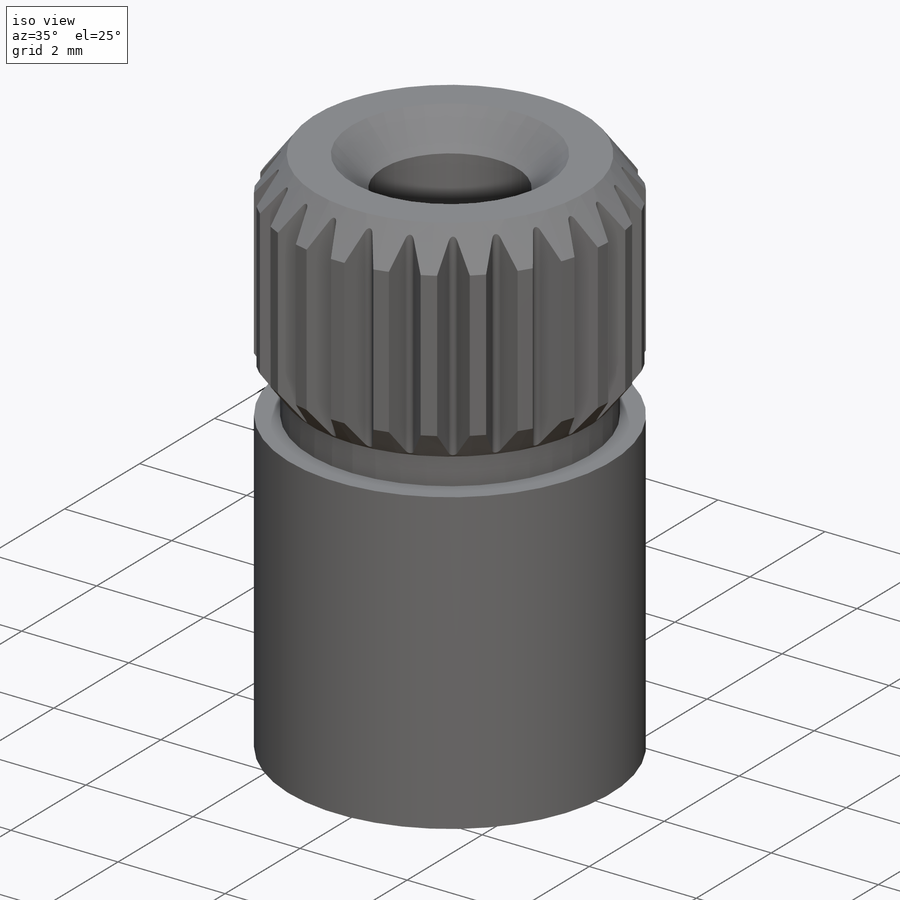
[diagram: iso view]
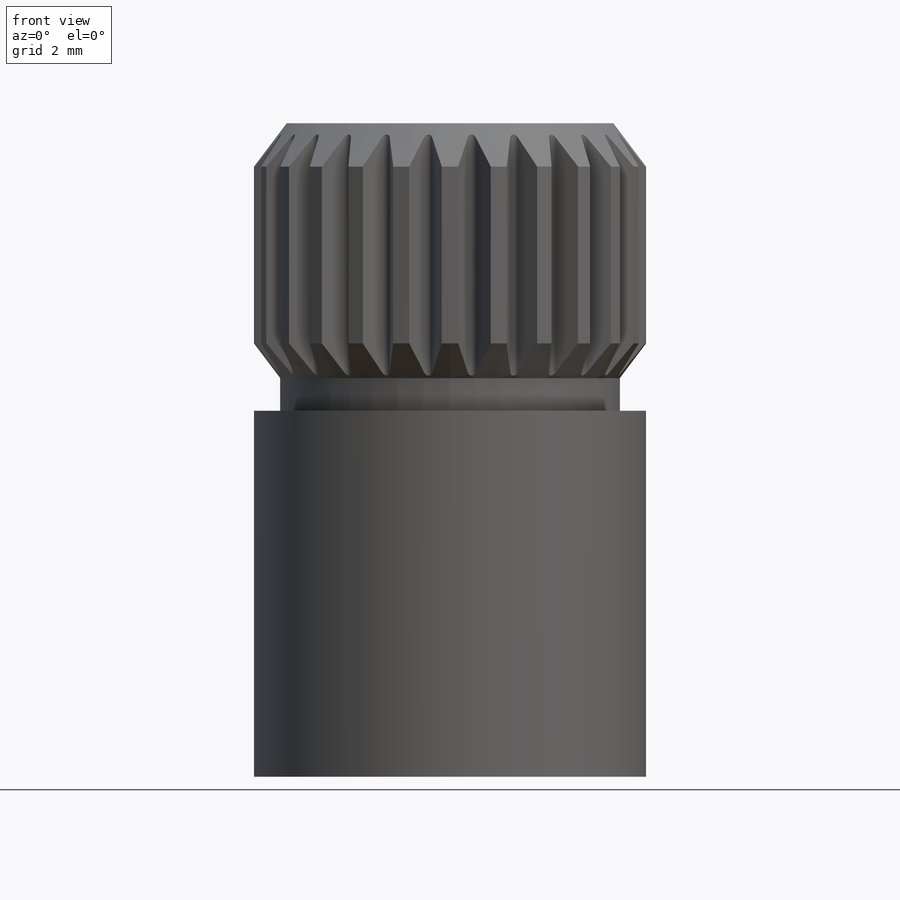
[diagram: front view]
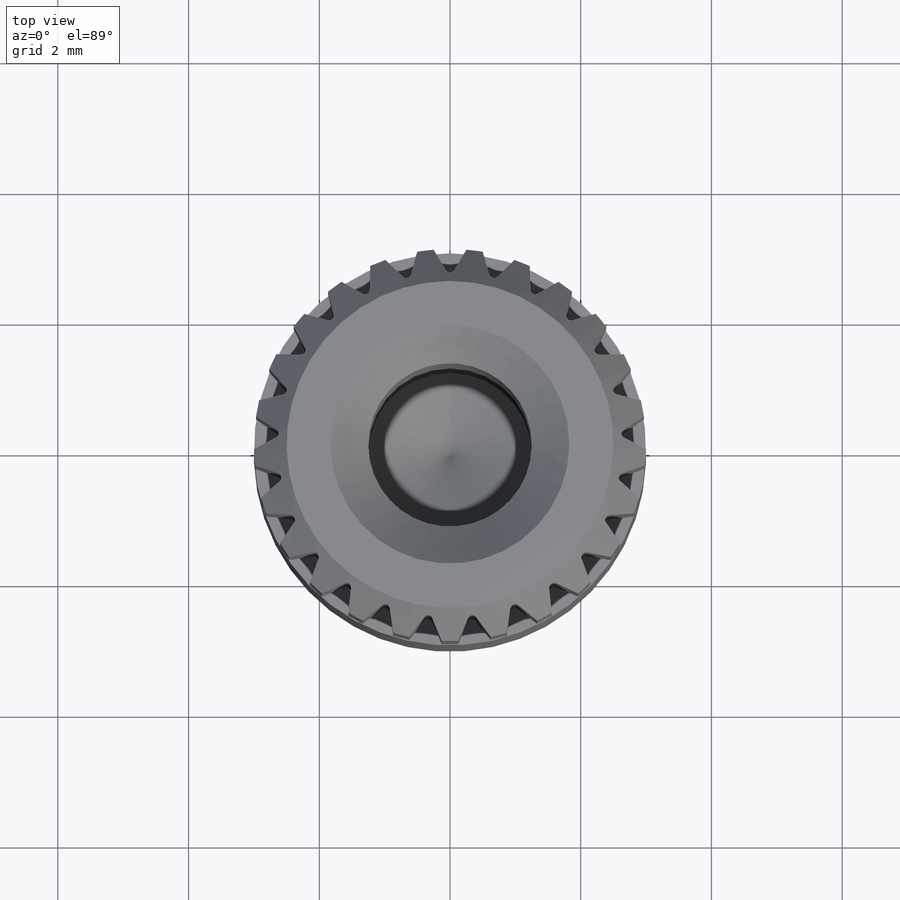
[diagram: top view]
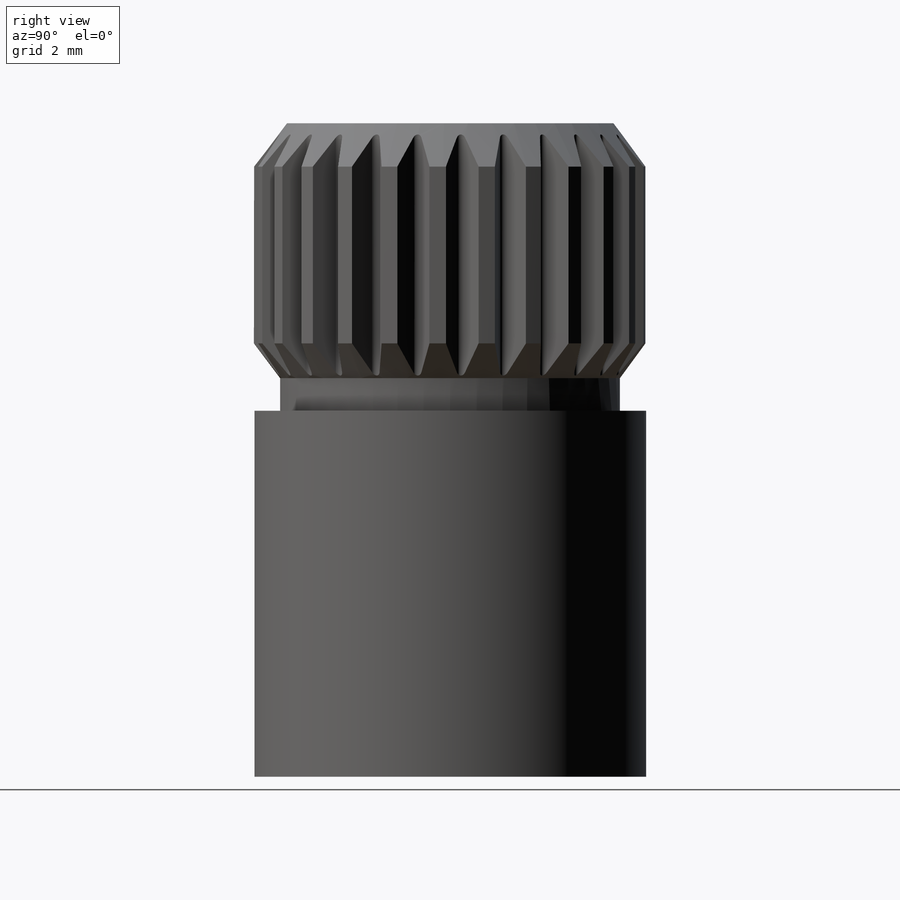
[diagram: right view]
SOLIDWORKS PART (.sldprt)
format: sldprt  version: not decoded by parser v0  size: 784,896 bytes
history: native  units: mm
features: sketch x6, plane x3, material x1, revolve x1, cut_extrude x1, pattern_circular x1, hole x1, thread x1, cut_revolve x1 (+10 scaffold rows collapsed)
feature tree (26):
  scaffold x10  (default folders/planes/origin — collapsed)
  material  "Laiton"
  plane  "Plan de face"
  plane  "Plan de dessus"
  plane  "Plan de droite"
  sketch  "Esquisse5"  dims[c1.D1=44.2mm c1.D2=6.0mm c1.D3=~4.094226mm c2.D3=40.0deg c2.D4=5.2mm c2.D5=3.9mm c2.D6=~2.230082mm c3.D6=37.0deg c3.D3=5.0mm c3.D7=~0.779448mm c4.D7=37.0deg c4.D8=4.4mm c4.D9=2.5mm c5.D9=90.0deg c6.D9=10.0mm c6.D8=4.4mm c6.D10=~1.317226mm]
  revolve  "Révolution1"  Angle=360deg
  sketch  "Esquisse1"  dims[c1.D1=6.0mm c1.D2=5.0mm c1.D3=3.65mm c1.D4=3.0mm c1.D5=~2.45875mm c1.D6=~0.377292mm c2.D1=29.0mm c2.D6=~0.262757mm c3.D6=60.0deg c3.D7=0.37mm c3.D8=0.5mm c3.D9=110.0mm c4.D9=~30.317891deg]
  sketch  "Esquisse3"  dims[D1=~0.70996mm]
  cut_extrude  "Enlèv. mat.-Extru.2"  [1 undecoded]
  pattern_circular  "Répétition circulaire2"  Count=25 Angle=360deg
  hole  "Trou taraudé M31"  Diameter=2.5mm Depth=9mm
  sketch  "Esquisse8"
  sketch  "Esquisse7"  dims[hole-wizard template sketch: 47 standard entries collapsed; hole parameters kept: c15.Profondeur du trou pour taraudage=9.0mm c15.D3=~14.816244mm c15.Angle de pointe=118.0deg]
  thread  "Filetage de perçage1"  Diameter=6.5mm  [1 undecoded]
  sketch  "Esquisse9"  dims[c1.D1=1.825mm c2.D1=45.0deg]
  cut_revolve  "Enlèvement de matière-Révolution1"  Angle=360deg
decode coverage: 10 of 12 modeling features carry decoded parameters
note: ~ marks probable driven/reference dimensions
note: 2 parameter values undecoded
note: suppression state not decoded; provenance and decode notes live in map.json
